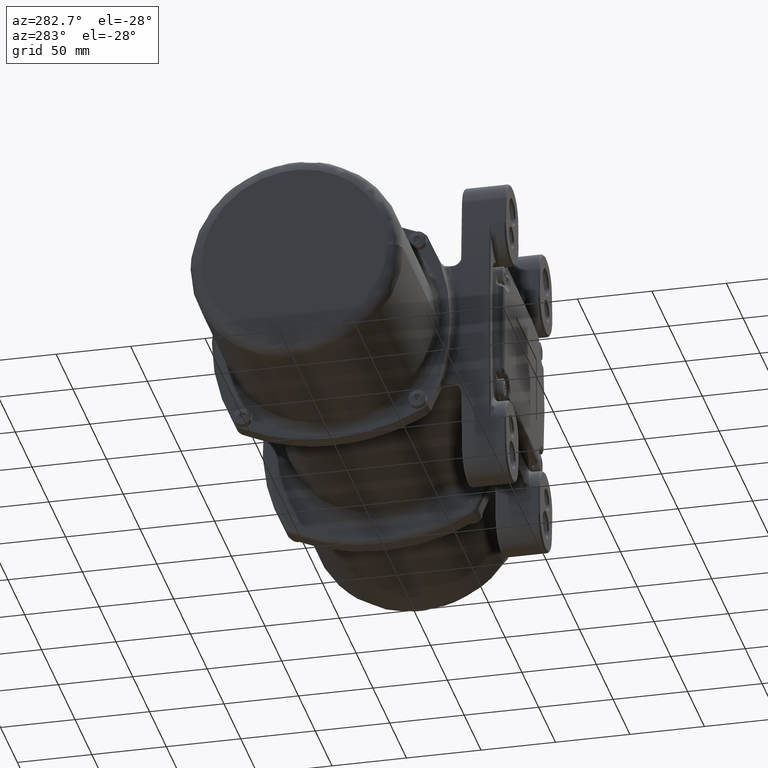
[diagram: clean part render]
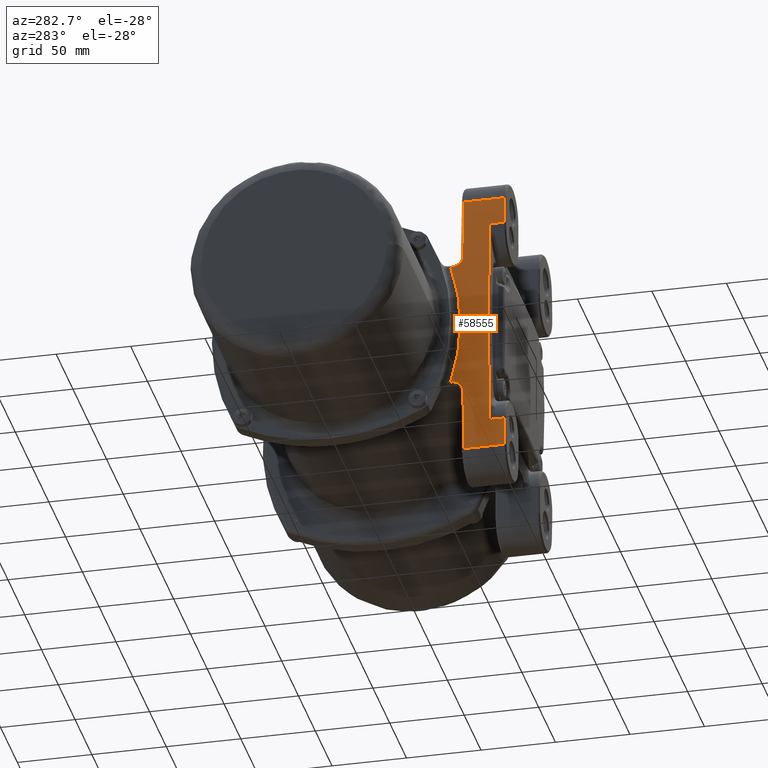
[diagram: same view with one face highlighted and labeled with its STEP entity id]
A machine part, auxiliary view. The second image highlights one B-rep face of the part: STEP entity #58555.
In plain terms, the highlighted cylindrical surface (partial cylindrical patch) has radius 1177.39 mm, axis along (0, -1, -0).
Its self-contained STEP definition (entity closure, byte-faithful):
#635 = CARTESIAN_POINT ( 'NONE',  ( -71.13583444504726600, 30.34806263771879400, -45.10319410281149300 ) ) ;
#876 = CIRCLE ( 'NONE', #134577, 1177.392857142863900 ) ;
#1668 = DIRECTION ( 'NONE',  ( 0.0000000000000000000, 6.482783760740783000E-017, 1.000000000000000000 ) ) ;
#2161 = DIRECTION ( 'NONE',  ( -1.665334536937734800E-016, 1.000000000000000000, 1.153897735036980100E-016 ) ) ;
#4572 = VECTOR ( 'NONE', #83145, 1000.000000000000000 ) ;
#5034 = CARTESIAN_POINT ( 'NONE',  ( -68.44412770809559300, 30.00000000000000000, 91.43671607753700000 ) ) ;
#6705 = CARTESIAN_POINT ( 'NONE',  ( -71.86872459648891700, 31.12070889468384400, 17.94184681052966800 ) ) ;
#6827 = CARTESIAN_POINT ( 'NONE',  ( -71.23073556272551300, 30.00000000000000000, 42.55421412300770400 ) ) ;
#6969 = AXIS2_PLACEMENT_3D ( 'NONE', #69138, #2161, #1668 ) ;
#8139 = CARTESIAN_POINT ( 'NONE',  ( -71.99655519911395600, 30.02918470274309100, 3.089023474305246700 ) ) ;
#8661 = CARTESIAN_POINT ( 'NONE',  ( -71.60927408183597700, 33.36463337481123400, 30.38088587173657400 ) ) ;
#9335 = DIRECTION ( 'NONE',  ( 1.665334536937734800E-016, -1.000000000000000000, -1.153897735036980100E-016 ) ) ;
#10057 = CARTESIAN_POINT ( 'NONE',  ( -71.23073556269037000, 35.50461118586418500, -42.55421412397879500 ) ) ;
#10382 = CARTESIAN_POINT ( 'NONE',  ( -71.07198738398129500, 29.27105976150855300, 46.73817081534929900 ) ) ;
#11026 = CARTESIAN_POINT ( 'NONE',  ( -71.04476934750287900, 28.97646876200334300, -47.41837974202209000 ) ) ;
#11515 = CARTESIAN_POINT ( 'NONE',  ( -71.21325191434266300, 33.34822016885014800, -43.03502048798829100 ) ) ;
#13205 = CIRCLE ( 'NONE', #6969, 1177.392857142863900 ) ;
#13391 = EDGE_CURVE ( 'NONE', #81059, #35400, #132692, .T. ) ;
#13790 = DIRECTION ( 'NONE',  ( 1.665334536937734800E-016, -1.000000000000000000, -1.153897735036980100E-016 ) ) ;
#14225 = ORIENTED_EDGE ( 'NONE', *, *, #26229, .T. ) ;
#16437 = CIRCLE ( 'NONE', #92496, 1177.392857142863900 ) ;
#18472 = LINE ( 'NONE', #25809, #55509 ) ;
#19516 = CARTESIAN_POINT ( 'NONE',  ( -71.97461426181041600, 30.21483079603616100, -9.066223887750380700 ) ) ;
#19554 = EDGE_CURVE ( 'NONE', #30174, #39660, #73553, .T. ) ;
#19743 = CARTESIAN_POINT ( 'NONE',  ( -69.76031444216360500, 1.000000000000098100, 72.58762542394389100 ) ) ;
#21403 = CARTESIAN_POINT ( 'NONE',  ( -70.97665896751966800, 28.54851451595204300, -49.08087049549578800 ) ) ;
#22380 = CARTESIAN_POINT ( 'NONE',  ( -71.19395786379658400, 32.24356121361174800, -43.55938792297619200 ) ) ;
#22704 = CARTESIAN_POINT ( 'NONE',  ( -71.22378901763139000, 34.29871824599384700, 42.74588055279440400 ) ) ;
#23183 = CARTESIAN_POINT ( 'NONE',  ( -71.13599049833810300, 30.35163355335374600, 45.09912115231399800 ) ) ;
#23190 = CARTESIAN_POINT ( 'NONE',  ( -71.23073556272569800, 30.00000000000000000, -42.55421412300625400 ) ) ;
#23607 = CYLINDRICAL_SURFACE ( 'NONE', #99505, 1177.392857142863900 ) ;
#23779 = DIRECTION ( 'NONE',  ( 0.0000000000000000000, -6.427532762779924800E-017, -1.000000000000000000 ) ) ;
#25809 = CARTESIAN_POINT ( 'NONE',  ( -69.76031444216370400, 30.00000000000000000, 72.58762542394389100 ) ) ;
#26229 = EDGE_CURVE ( 'NONE', #75700, #100301, #87710, .T. ) ;
#28925 = DIRECTION ( 'NONE',  ( 1.665334536937734800E-016, -1.000000000000000000, -1.153897735036980100E-016 ) ) ;
#29096 = ORIENTED_EDGE ( 'NONE', *, *, #131979, .F. ) ;
#29290 = EDGE_CURVE ( 'NONE', #74728, #40512, #18472, .T. ) ;
#29487 = EDGE_CURVE ( 'NONE', #35400, #43973, #97733, .T. ) ;
#30174 = VERTEX_POINT ( 'NONE', #81004 ) ;
#32289 = DIRECTION ( 'NONE',  ( 0.0000000000000000000, -6.482783760740783000E-017, -1.000000000000000000 ) ) ;
#32588 = CARTESIAN_POINT ( 'NONE',  ( -71.06318278343199800, 29.16652576083940200, 46.95931407709500100 ) ) ;
#33277 = CARTESIAN_POINT ( 'NONE',  ( -71.20252350285687700, 32.67630001880905200, -43.32740203258464400 ) ) ;
#33577 = CARTESIAN_POINT ( 'NONE',  ( -71.16232579743069700, 31.04329893123085100, 44.40677377355550000 ) ) ;
#33680 = EDGE_CURVE ( 'NONE', #39660, #138681, #16437, .T. ) ;
#33735 = VERTEX_POINT ( 'NONE', #127460 ) ;
#33754 = CARTESIAN_POINT ( 'NONE',  ( -71.03530362078038300, 28.89282848984069600, -47.65268353418078800 ) ) ;
#34057 = CARTESIAN_POINT ( 'NONE',  ( -71.09747931630920400, 29.63009751173115100, 46.09197731089729900 ) ) ;
#35400 = VERTEX_POINT ( 'NONE', #114577 ) ;
#37136 = DIRECTION ( 'NONE',  ( 1.665334536937734800E-016, -1.000000000000000000, -1.153897735036980100E-016 ) ) ;
#37533 = CARTESIAN_POINT ( 'NONE',  ( -69.76031444216360500, 11.00000000000000000, 72.58762542394380500 ) ) ;
#37540 = CARTESIAN_POINT ( 'NONE',  ( -71.23073556272569800, 36.70701848268974700, -42.55421412300665200 ) ) ;
#39419 = DIRECTION ( 'NONE',  ( 0.0000000000000000000, -6.427532762779924800E-017, -1.000000000000000000 ) ) ;
#39660 = VERTEX_POINT ( 'NONE', #120223 ) ;
#40273 = DIRECTION ( 'NONE',  ( 0.0000000000000000000, -6.482783760740783000E-017, -1.000000000000000000 ) ) ;
#40341 = EDGE_CURVE ( 'NONE', #117948, #75700, #142288, .T. ) ;
#40512 = VERTEX_POINT ( 'NONE', #19743 ) ;
#41517 = ORIENTED_EDGE ( 'NONE', *, *, #75965, .T. ) ;
#41714 = CARTESIAN_POINT ( 'NONE',  ( -71.99918826002479500, 30.00687362790114700, 1.506501852911570100 ) ) ;
#42679 = EDGE_CURVE ( 'NONE', #43973, #114594, #112111, .T. ) ;
#43423 = CARTESIAN_POINT ( 'NONE',  ( -71.23073556272569800, 36.00000000000000000, 42.55421412300724900 ) ) ;
#43973 = VERTEX_POINT ( 'NONE', #126755 ) ;
#44333 = AXIS2_PLACEMENT_3D ( 'NONE', #134312, #145189, #145686 ) ;
#44554 = CARTESIAN_POINT ( 'NONE',  ( -71.16219251492876200, 31.03927654815489500, -44.41030705351274600 ) ) ;
#44866 = CARTESIAN_POINT ( 'NONE',  ( -70.97677985619179700, 28.54851912272285100, 49.07802618156939200 ) ) ;
#46002 = CARTESIAN_POINT ( 'NONE',  ( -71.22897828657977500, 35.01457394379043800, -42.60288562572854700 ) ) ;
#47490 = CARTESIAN_POINT ( 'NONE',  ( -68.44412770809570600, 28.50000000000000000, -91.43671607753680100 ) ) ;
#49244 = CARTESIAN_POINT ( 'NONE',  ( -69.76031444216370400, 30.00000000000000000, -72.58762542394349300 ) ) ;
#49459 = ORIENTED_EDGE ( 'NONE', *, *, #19554, .T. ) ;
#49814 = B_SPLINE_CURVE_WITH_KNOTS ( 'NONE', 3,
 ( #43423, #143744, #101414, #22704, #77803, #133835, #146176, #90612, #100933, #55670, #33577, #23183, #90125, #34057, #123046, #10382, #32588, #113214, #145199, #112736, #112246, #44866, #134322, #123520 ),
 .UNSPECIFIED., .F., .F.,
 ( 4, 2, 2, 2, 2, 2, 2, 2, 2, 2, 2, 4 ),
 ( 0.0000000000000000000, 0.1250000000000000000, 0.1875000000000000300, 0.2500000000000000000, 0.3750000000000000600, 0.5000000000000000000, 0.6250000000000000000, 0.6875000000000004400, 0.7500000000000001100, 0.8125000000000003300, 0.8749999999999992200, 1.000000000000000000 ),
 .UNSPECIFIED. ) ;
#52004 = CARTESIAN_POINT ( 'NONE',  ( -71.86377109464852700, 31.16401753794211200, -17.99882705767931100 ) ) ;
#52568 = ORIENTED_EDGE ( 'NONE', *, *, #42679, .T. ) ;
#52974 = CARTESIAN_POINT ( 'NONE',  ( -71.46569516377103100, 34.62037278295449000, 35.63970040515627600 ) ) ;
#53962 = CARTESIAN_POINT ( 'NONE',  ( -71.35518457521780500, 35.59497455134239600, 39.11320017868686700 ) ) ;
#54251 = EDGE_CURVE ( 'NONE', #33735, #117948, #55284, .T. ) ;
#55284 = LINE ( 'NONE', #6827, #145060 ) ;
#55509 = VECTOR ( 'NONE', #37136, 1000.000000000000000 ) ;
#55624 = CARTESIAN_POINT ( 'NONE',  ( -70.93514042025650200, 28.50000000000000000, -50.06378132118450000 ) ) ;
#55670 = CARTESIAN_POINT ( 'NONE',  ( -71.17422723868669700, 31.42917488594840200, 44.08979769984760100 ) ) ;
#56323 = CARTESIAN_POINT ( 'NONE',  ( -71.07211208627887800, 29.25831779962519600, -46.73674210031919800 ) ) ;
#57239 = CARTESIAN_POINT ( 'NONE',  ( 1105.392857142863900, 0.9999999999999590300, 1.740633880324305000E-014 ) ) ;
#58555 = ADVANCED_FACE ( 'NONE', ( #62276 ), #23607, .T. ) ;
#60957 = ORIENTED_EDGE ( 'NONE', *, *, #107108, .F. ) ;
#62276 = FACE_OUTER_BOUND ( 'NONE', #145792, .T. ) ;
#63348 = CARTESIAN_POINT ( 'NONE',  ( -71.47916470166036600, 34.48712045711057100, -35.68515092891737300 ) ) ;
#64800 = CARTESIAN_POINT ( 'NONE',  ( -71.99996188801078700, 30.00032296334953900, 0.3754089972785705800 ) ) ;
#65429 = ORIENTED_EDGE ( 'NONE', *, *, #133843, .T. ) ;
#65470 = CARTESIAN_POINT ( 'NONE',  ( -68.44412770809559300, 30.00000000000000000, -91.43671607753650200 ) ) ;
#66184 = CARTESIAN_POINT ( 'NONE',  ( -71.00636887872366300, 28.69109926012179200, -48.36174753542099600 ) ) ;
#69138 = CARTESIAN_POINT ( 'NONE',  ( 1105.392857142863900, 28.50000000000000000, 2.057955757459475000E-014 ) ) ;
#72285 = VERTEX_POINT ( 'NONE', #55624 ) ;
#73553 = LINE ( 'NONE', #5034, #117620 ) ;
#74153 = CARTESIAN_POINT ( 'NONE',  ( -71.78698215834441500, 31.82489883897438800, 22.41352487403192800 ) ) ;
#74641 = CARTESIAN_POINT ( 'NONE',  ( -71.23073556272569800, 36.70701848268974700, -42.55421412300665200 ) ) ;
#74728 = VERTEX_POINT ( 'NONE', #37533 ) ;
#74753 = ORIENTED_EDGE ( 'NONE', *, *, #130066, .F. ) ;
#75700 = VERTEX_POINT ( 'NONE', #37540 ) ;
#75965 = EDGE_CURVE ( 'NONE', #114594, #74728, #134247, .T. ) ;
#77490 = CARTESIAN_POINT ( 'NONE',  ( -71.22149439828116600, 34.04737977113690300, -42.80902864127374100 ) ) ;
#77803 = CARTESIAN_POINT ( 'NONE',  ( -71.22162995975620000, 34.06113192679875100, 42.80530226776549800 ) ) ;
#78955 = CARTESIAN_POINT ( 'NONE',  ( -71.08914201156456200, 29.48830345308194000, -46.30564133712609000 ) ) ;
#79429 = CARTESIAN_POINT ( 'NONE',  ( -71.21627488452458000, 33.57822007904980000, -42.95224808498743800 ) ) ;
#81004 = CARTESIAN_POINT ( 'NONE',  ( -68.44412770809570600, 1.000000000000125900, 91.43671607753690000 ) ) ;
#81059 = VERTEX_POINT ( 'NONE', #47490 ) ;
#82838 = DIRECTION ( 'NONE',  ( -1.665334536937734800E-016, 1.000000000000000000, 1.153897735036980100E-016 ) ) ;
#83145 = DIRECTION ( 'NONE',  ( -1.665334536937734800E-016, 1.000000000000000000, 1.153897735036980100E-016 ) ) ;
#85479 = CARTESIAN_POINT ( 'NONE',  ( -71.98583156831280400, 30.12018383290832800, 6.250501091347674200 ) ) ;
#85609 = DIRECTION ( 'NONE',  ( -1.665334536937734800E-016, 1.000000000000000000, 1.153897735036980100E-016 ) ) ;
#86418 = AXIS2_PLACEMENT_3D ( 'NONE', #95531, #106815, #39419 ) ;
#86645 = CARTESIAN_POINT ( 'NONE',  ( -71.23073556272569800, 36.00000000000000000, -42.55421412300655200 ) ) ;
#86949 = CARTESIAN_POINT ( 'NONE',  ( -71.99976127390269200, 30.00201639006935700, -3.679184038637197700 ) ) ;
#87710 = LINE ( 'NONE', #23190, #140434 ) ;
#88846 = ORIENTED_EDGE ( 'NONE', *, *, #40341, .T. ) ;
#89332 = CARTESIAN_POINT ( 'NONE',  ( -70.93514042025650200, 28.50000000000000000, -50.06378132118450000 ) ) ;
#89766 = ORIENTED_EDGE ( 'NONE', *, *, #29487, .T. ) ;
#90125 = CARTESIAN_POINT ( 'NONE',  ( -71.12147021891988200, 30.04124950809344700, 45.47687298318350500 ) ) ;
#90612 = CARTESIAN_POINT ( 'NONE',  ( -71.20300352951089500, 32.67489386346870400, 43.31461915585665400 ) ) ;
#90784 = CARTESIAN_POINT ( 'NONE',  ( -71.01611642795856500, 28.75034930032934400, -48.12403336986199100 ) ) ;
#92121 = ORIENTED_EDGE ( 'NONE', *, *, #13391, .T. ) ;
#92277 = VECTOR ( 'NONE', #9335, 1000.000000000000000 ) ;
#92496 = AXIS2_PLACEMENT_3D ( 'NONE', #107646, #28925, #40273 ) ;
#95531 = CARTESIAN_POINT ( 'NONE',  ( 1105.392857142863900, 0.9999999999999870100, 1.740633880324305000E-014 ) ) ;
#97733 = CIRCLE ( 'NONE', #86418, 1177.392857142863900 ) ;
#98293 = CARTESIAN_POINT ( 'NONE',  ( -71.83520579372739700, 31.40946711466703800, -19.77885487071652900 ) ) ;
#99505 = AXIS2_PLACEMENT_3D ( 'NONE', #110987, #99705, #32289 ) ;
#99705 = DIRECTION ( 'NONE',  ( 1.665334536937734800E-016, -1.000000000000000000, -1.153897735036980100E-016 ) ) ;
#100301 = VERTEX_POINT ( 'NONE', #86645 ) ;
#100565 = ORIENTED_EDGE ( 'NONE', *, *, #54251, .T. ) ;
#100642 = CARTESIAN_POINT ( 'NONE',  ( -71.18921465286285900, 32.03064530407880300, -43.68738105284893400 ) ) ;
#100933 = CARTESIAN_POINT ( 'NONE',  ( -71.19451033620168800, 32.24422709768764900, 43.54516046587505000 ) ) ;
#101414 = CARTESIAN_POINT ( 'NONE',  ( -71.22897840996279200, 35.01747964307904200, 42.60287844751069700 ) ) ;
#101585 = CARTESIAN_POINT ( 'NONE',  ( -71.20637620828328800, 32.89726016403125200, -43.22259752297989600 ) ) ;
#102019 = DIRECTION ( 'NONE',  ( -1.665334536937734800E-016, 1.000000000000000000, 1.153897735036980100E-016 ) ) ;
#102083 = CARTESIAN_POINT ( 'NONE',  ( -71.17386995611028100, 31.41644336344865000, -44.09934543763274200 ) ) ;
#102740 = ORIENTED_EDGE ( 'NONE', *, *, #29290, .T. ) ;
#106815 = DIRECTION ( 'NONE',  ( -1.665334536937734800E-016, 1.000000000000000000, 1.153897735036980100E-016 ) ) ;
#107108 = EDGE_CURVE ( 'NONE', #33735, #138681, #49814, .T. ) ;
#107646 = CARTESIAN_POINT ( 'NONE',  ( 1105.392857142863900, 28.50000000000000000, 2.057955757459475000E-014 ) ) ;
#108093 = CARTESIAN_POINT ( 'NONE',  ( -71.91293549559812000, 30.74237841304129000, -14.42903754695754200 ) ) ;
#110987 = CARTESIAN_POINT ( 'NONE',  ( 1105.392857142863900, 30.00000000000000000, 2.075264223485029800E-014 ) ) ;
#112111 = LINE ( 'NONE', #49244, #4572 ) ;
#112246 = CARTESIAN_POINT ( 'NONE',  ( -71.00681988727760100, 28.69355894881229900, 48.35078901577599500 ) ) ;
#112736 = CARTESIAN_POINT ( 'NONE',  ( -71.01667514673640400, 28.75403743419795100, 48.11036891322199700 ) ) ;
#113214 = CARTESIAN_POINT ( 'NONE',  ( -71.04508082221819600, 28.97943499634550000, 47.41064410150170300 ) ) ;
#114577 = CARTESIAN_POINT ( 'NONE',  ( -68.44412770809570600, 1.000000000000083900, -91.43671607753680100 ) ) ;
#114594 = VERTEX_POINT ( 'NONE', #129892 ) ;
#114667 = ORIENTED_EDGE ( 'NONE', *, *, #33680, .T. ) ;
#117620 = VECTOR ( 'NONE', #82838, 1000.000000000000000 ) ;
#117948 = VERTEX_POINT ( 'NONE', #132344 ) ;
#119149 = B_SPLINE_CURVE_WITH_KNOTS ( 'NONE', 3,
 ( #89332, #124172, #21403, #66184, #90784, #33754, #11026, #56323, #78955, #133533, #635, #44554, #102083, #100642, #22380, #33277, #101585, #11515, #79429, #77490, #134982, #46002, #10057, #123220 ),
 .UNSPECIFIED., .F., .F.,
 ( 4, 2, 2, 2, 2, 2, 2, 2, 2, 2, 2, 4 ),
 ( 0.0000000000000000000, 0.1250000000000000800, 0.1875000000000001900, 0.2500000000000000000, 0.3750000000000004400, 0.5000000000000000000, 0.6250000000000003300, 0.6875000000000001100, 0.7500000000000007800, 0.8125000000000005600, 0.8750000000000003300, 1.000000000000000000 ),
 .UNSPECIFIED. ) ;
#119434 = CARTESIAN_POINT ( 'NONE',  ( -71.67551645046199800, 32.78830448184923800, 27.73933772662209300 ) ) ;
#119905 = CARTESIAN_POINT ( 'NONE',  ( -71.94265257690079800, 30.48769001516408700, 12.55914394033624100 ) ) ;
#120223 = CARTESIAN_POINT ( 'NONE',  ( -68.44412770809559300, 28.50000000000000000, 91.43671607753690000 ) ) ;
#120387 = CARTESIAN_POINT ( 'NONE',  ( -71.99973066463465400, 30.00228070087759100, 0.8278969423233022400 ) ) ;
#123046 = CARTESIAN_POINT ( 'NONE',  ( -71.08911366579150100, 29.50244555479109800, 46.30506863099319800 ) ) ;
#123220 = CARTESIAN_POINT ( 'NONE',  ( -71.23073556272569800, 36.00000000000000000, -42.55421412300655200 ) ) ;
#123500 = CARTESIAN_POINT ( 'NONE',  ( -71.23073556272569800, 36.70701848268964800, 42.55421412300710700 ) ) ;
#123520 = CARTESIAN_POINT ( 'NONE',  ( -70.93514042025650200, 28.50000000000000000, 50.06378132118489800 ) ) ;
#124172 = CARTESIAN_POINT ( 'NONE',  ( -70.95623073048659500, 28.50000000149189500, -49.56823101023429200 ) ) ;
#126755 = CARTESIAN_POINT ( 'NONE',  ( -69.76031444216360500, 1.000000000000056000, -72.58762542394359200 ) ) ;
#126787 = CARTESIAN_POINT ( 'NONE',  ( -70.93514042025650200, 28.50000000000000000, 50.06378132118489800 ) ) ;
#127460 = CARTESIAN_POINT ( 'NONE',  ( -71.23073556272569800, 36.00000000000000000, 42.55421412300724900 ) ) ;
#129892 = CARTESIAN_POINT ( 'NONE',  ( -69.76031444216360500, 11.00000000000000000, -72.58762542394359200 ) ) ;
#130066 = EDGE_CURVE ( 'NONE', #81059, #72285, #13205, .T. ) ;
#130674 = CARTESIAN_POINT ( 'NONE',  ( -71.67205344012727200, 32.81497020727712100, -28.68692656383730400 ) ) ;
#131979 = EDGE_CURVE ( 'NONE', #72285, #100301, #119149, .T. ) ;
#132344 = CARTESIAN_POINT ( 'NONE',  ( -71.23073556272569800, 36.70701848268964800, 42.55421412300710700 ) ) ;
#132626 = CARTESIAN_POINT ( 'NONE',  ( -71.76971740293188900, 31.97378862505659900, 23.30242628144720000 ) ) ;
#132692 = LINE ( 'NONE', #65470, #92277 ) ;
#133533 = CARTESIAN_POINT ( 'NONE',  ( -71.12097451912687500, 30.03169329687204200, -45.48967643393438500 ) ) ;
#133835 = CARTESIAN_POINT ( 'NONE',  ( -71.21642303044950500, 33.59005204851780500, 42.94818939179935300 ) ) ;
#133843 = EDGE_CURVE ( 'NONE', #40512, #30174, #876, .T. ) ;
#134247 = CIRCLE ( 'NONE', #44333, 1177.392857142863900 ) ;
#134312 = CARTESIAN_POINT ( 'NONE',  ( 1105.392857142863900, 11.00000000000000000, 1.856023653828005000E-014 ) ) ;
#134322 = CARTESIAN_POINT ( 'NONE',  ( -70.95623091545640200, 28.50000000098319900, 49.56822666407629900 ) ) ;
#134577 = AXIS2_PLACEMENT_3D ( 'NONE', #57239, #102019, #23779 ) ;
#134982 = CARTESIAN_POINT ( 'NONE',  ( -71.22369788276746800, 34.28757768696935000, -42.74838998301604700 ) ) ;
#138681 = VERTEX_POINT ( 'NONE', #126787 ) ;
#140434 = VECTOR ( 'NONE', #13790, 1000.000000000000000 ) ;
#142055 = CARTESIAN_POINT ( 'NONE',  ( -71.73319517156743100, 32.28928680555172500, 25.07961212880385200 ) ) ;
#142288 = B_SPLINE_CURVE_WITH_KNOTS ( 'NONE', 3,
 ( #123500, #53962, #52974, #8661, #119434, #142055, #132626, #74153, #6705, #119905, #85479, #8139, #41714, #120387, #64800, #143015, #86949, #19516, #108093, #52004, #98293, #130674, #63348, #74641 ),
 .UNSPECIFIED., .F., .F.,
 ( 4, 2, 1, 2, 2, 1, 1, 1, 1, 2, 2, 1, 2, 2, 4 ),
 ( 0.0000000000000000000, 0.1249999999999999400, 0.1874999999999998900, 0.2187499999999998600, 0.2499999999999998100, 0.3749999999999999400, 0.4375000000000000000, 0.4687500000000000600, 0.4843750000000001100, 0.4921875000000001100, 0.5000000000000001100, 0.6250000000000001100, 0.6875000000000001100, 0.7500000000000001100, 1.000000000000000000 ),
 .UNSPECIFIED. ) ;
#143015 = CARTESIAN_POINT ( 'NONE',  ( -72.00001223083685900, 29.99989686883318600, 0.1479177154004743800 ) ) ;
#143744 = CARTESIAN_POINT ( 'NONE',  ( -71.23073556267120000, 35.50462827078684600, 42.55421412451550400 ) ) ;
#145060 = VECTOR ( 'NONE', #85609, 1000.000000000000000 ) ;
#145189 = DIRECTION ( 'NONE',  ( -1.665334536937734800E-016, 1.000000000000000000, 1.153897735036980100E-016 ) ) ;
#145199 = CARTESIAN_POINT ( 'NONE',  ( -71.03578348481150300, 28.89687833953600200, 47.64083090923480100 ) ) ;
#145686 = DIRECTION ( 'NONE',  ( 0.0000000000000000000, -6.482783760740783000E-017, -1.000000000000000000 ) ) ;
#145792 = EDGE_LOOP ( 'NONE', ( #29096, #74753, #92121, #89766, #52568, #41517, #102740, #65429, #49459, #114667, #60957, #100565, #88846, #14225 ) ) ;
#146176 = CARTESIAN_POINT ( 'NONE',  ( -71.21336036583279800, 33.35592560602305000, 43.03205612273659900 ) ) ;